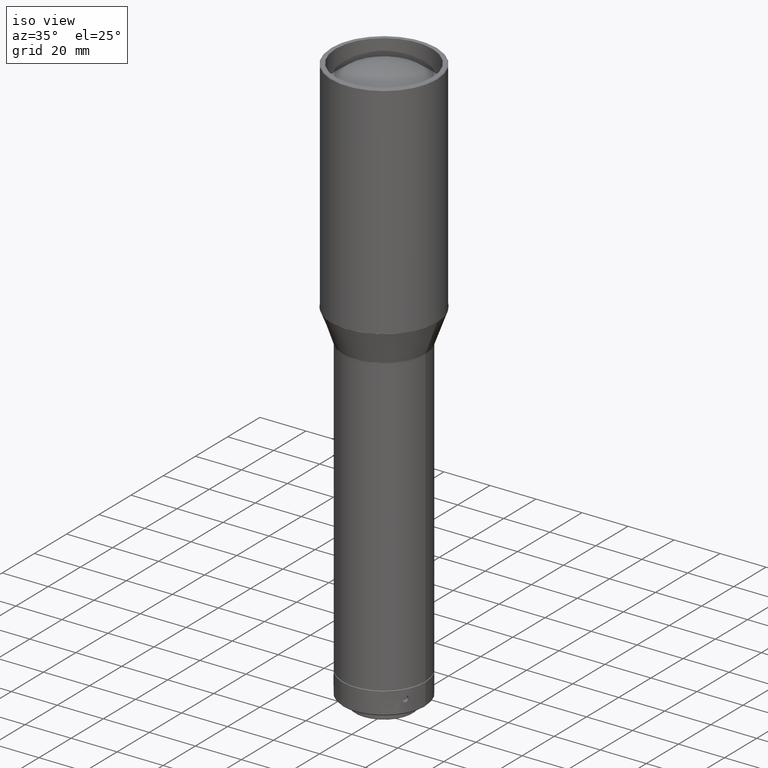
[diagram: clean part render]
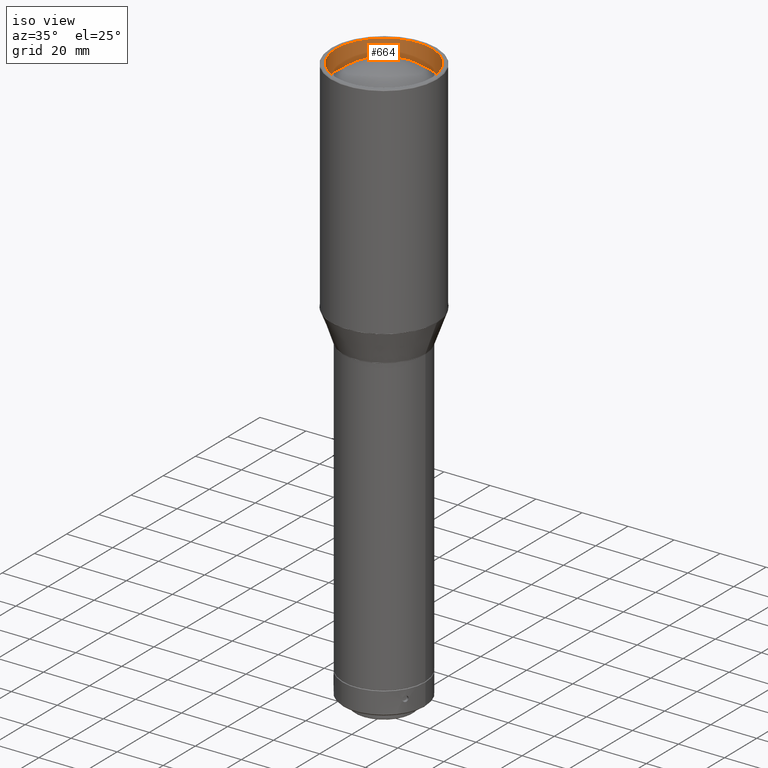
[diagram: same view with one face highlighted and labeled with its STEP entity id]
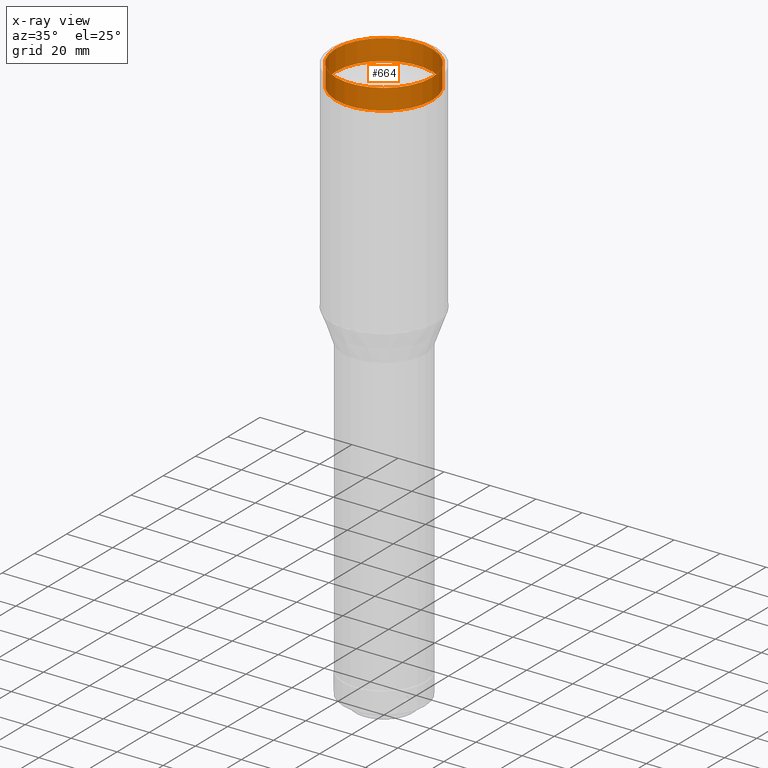
[diagram: x-ray of the same camera — body ghosted, the highlighted face saturated]
A machine part, iso view. The second image highlights one B-rep face of the part: STEP entity #664.
The next image is the same camera in x-ray: the body ghosted, the highlighted face saturated — about 0% of this face is hidden behind the body in this view.
In plain terms, the highlighted cylindrical surface (bore or boss wall) has radius 21 mm, axis along (-0, -0, 1).
Its self-contained STEP definition (entity closure, byte-faithful):
#20 = AXIS2_PLACEMENT_3D ( 'NONE', #268, #559, #38 ) ;
#38 = DIRECTION ( 'NONE',  ( 1.000000000000000000, 0.000000000000000000, 0.000000000000000000 ) ) ;
#45 = FACE_OUTER_BOUND ( 'NONE', #53, .T. ) ;
#50 = DIRECTION ( 'NONE',  ( -0.000000000000000000, -0.000000000000000000, 1.000000000000000000 ) ) ;
#53 = EDGE_LOOP ( 'NONE', ( #448 ) ) ;
#74 = CIRCLE ( 'NONE', #20, 20.99999999999999645 ) ;
#101 = VERTEX_POINT ( 'NONE', #838 ) ;
#167 = CARTESIAN_POINT ( 'NONE',  ( 20.99999999999995737, 4.374815137588440821E-15, -407.0000000000000000 ) ) ;
#224 = CARTESIAN_POINT ( 'NONE',  ( -4.336808689942017736E-14, 4.374815137588440821E-15, -407.0000000000000000 ) ) ;
#268 = CARTESIAN_POINT ( 'NONE',  ( -4.336808689942017736E-14, 4.374815137588440821E-15, -416.0000000000000568 ) ) ;
#269 = AXIS2_PLACEMENT_3D ( 'NONE', #224, #897, #815 ) ;
#309 = AXIS2_PLACEMENT_3D ( 'NONE', #334, #50, #643 ) ;
#334 = CARTESIAN_POINT ( 'NONE',  ( -4.336808689942017736E-14, 4.374815137588440821E-15, -416.0000000000000568 ) ) ;
#350 = EDGE_LOOP ( 'NONE', ( #950 ) ) ;
#448 = ORIENTED_EDGE ( 'NONE', *, *, #859, .T. ) ;
#559 = DIRECTION ( 'NONE',  ( 0.000000000000000000, 0.000000000000000000, 1.000000000000000000 ) ) ;
#568 = CIRCLE ( 'NONE', #269, 20.99999999999999645 ) ;
#634 = CYLINDRICAL_SURFACE ( 'NONE', #309, 20.99999999999999645 ) ;
#643 = DIRECTION ( 'NONE',  ( 1.000000000000000000, 0.000000000000000000, 0.000000000000000000 ) ) ;
#664 = ADVANCED_FACE ( 'NONE', ( #714, #45 ), #634, .F. ) ;
#694 = EDGE_CURVE ( 'NONE', #101, #101, #74, .T. ) ;
#714 = FACE_OUTER_BOUND ( 'NONE', #350, .T. ) ;
#752 = VERTEX_POINT ( 'NONE', #167 ) ;
#815 = DIRECTION ( 'NONE',  ( 1.000000000000000000, 0.000000000000000000, 0.000000000000000000 ) ) ;
#838 = CARTESIAN_POINT ( 'NONE',  ( 20.99999999999995737, 4.374815137588440821E-15, -416.0000000000000568 ) ) ;
#859 = EDGE_CURVE ( 'NONE', #752, #752, #568, .T. ) ;
#897 = DIRECTION ( 'NONE',  ( 0.000000000000000000, 0.000000000000000000, 1.000000000000000000 ) ) ;
#950 = ORIENTED_EDGE ( 'NONE', *, *, #694, .F. ) ;